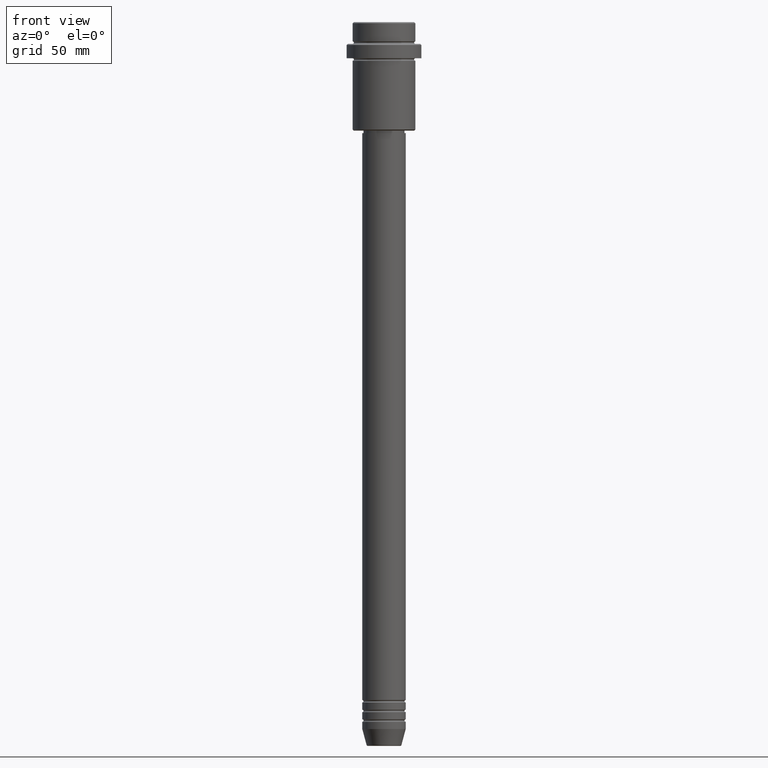
[diagram: clean part render]
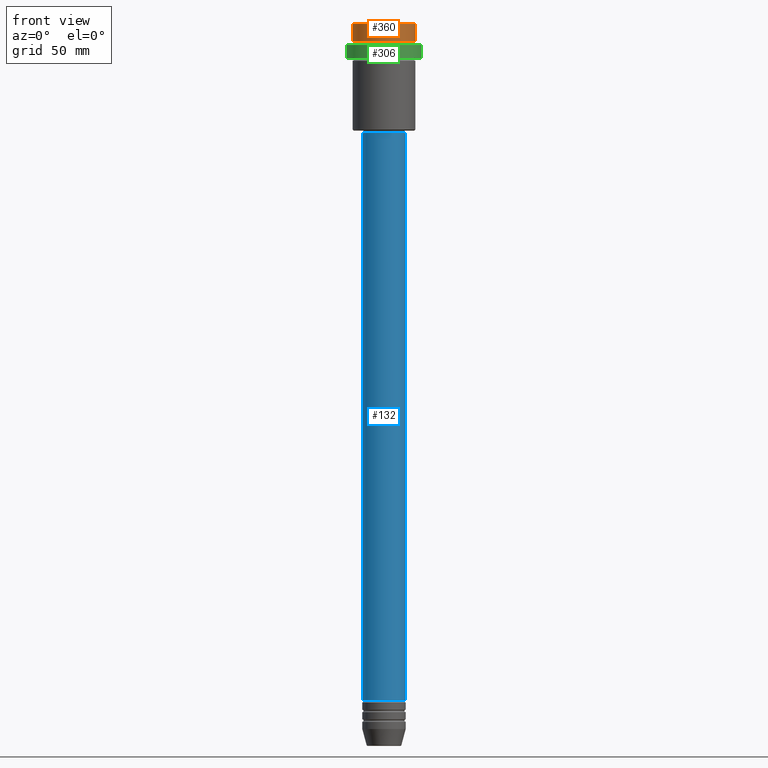
[diagram: same view with three faces highlighted in distinct colors, each labeled with its STEP entity id]
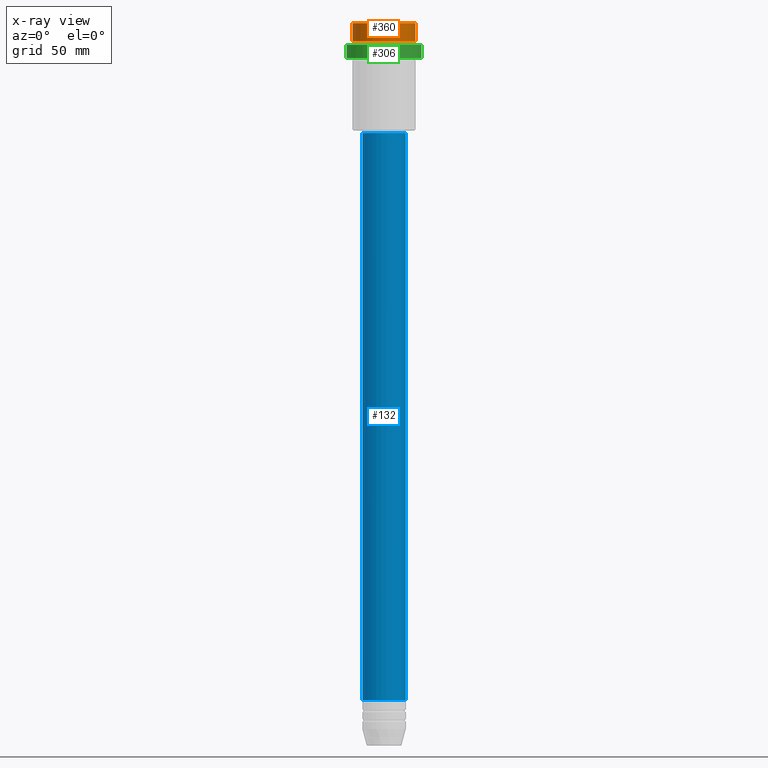
[diagram: x-ray of the same camera — body ghosted, the three highlighted faces saturated]
A machine part, front view with three faces highlighted in distinct colors.
The next image is the same camera in x-ray (body ghosted, the three faces saturated) — at least one of them is partly hidden behind the body in this view.
Their STEP definitions:

[orange] entity #360 — the highlighted cylindrical surface (edge-blend (fillet) strip) has radius 13 mm, axis along (-0, -0, 1).
#92 = EDGE_CURVE ( 'NONE', #792, #603, #1309, .T. ) ;
#104 = FACE_OUTER_BOUND ( 'NONE', #1129, .T. ) ;
#152 = CARTESIAN_POINT ( 'NONE',  ( -12.99999999999999822, 1.592040838891558898E-15, -7.999999999999998224 ) ) ;
#195 = CARTESIAN_POINT ( 'NONE',  ( 0.000000000000000000, 0.000000000000000000, -0.5000000000000315303 ) ) ;
#246 = CARTESIAN_POINT ( 'NONE',  ( 0.000000000000000000, 0.000000000000000000, 0.000000000000000000 ) ) ;
#262 = ORIENTED_EDGE ( 'NONE', *, *, #92, .T. ) ;
#268 = ORIENTED_EDGE ( 'NONE', *, *, #1210, .T. ) ;
#283 = CARTESIAN_POINT ( 'NONE',  ( 12.99999999999999822, 0.000000000000000000, -0.5000000000000315303 ) ) ;
#339 = DIRECTION ( 'NONE',  ( -0.000000000000000000, -0.000000000000000000, 1.000000000000000000 ) ) ;
#347 = DIRECTION ( 'NONE',  ( -0.000000000000000000, -0.000000000000000000, 1.000000000000000000 ) ) ;
#360 = ADVANCED_FACE ( 'NONE', ( #104 ), #766, .T. ) ;
#492 = CIRCLE ( 'NONE', #1177, 12.99999999999999822 ) ;
#495 = VERTEX_POINT ( 'NONE', #152 ) ;
#531 = VECTOR ( 'NONE', #1104, 1000.000000000000000 ) ;
#566 = LINE ( 'NONE', #1095, #745 ) ;
#586 = CARTESIAN_POINT ( 'NONE',  ( -12.99999999999999822, 1.592040838891558898E-15, -0.5000000000000315303 ) ) ;
#603 = VERTEX_POINT ( 'NONE', #283 ) ;
#666 = AXIS2_PLACEMENT_3D ( 'NONE', #195, #1082, #1279 ) ;
#704 = DIRECTION ( 'NONE',  ( 1.000000000000000000, 0.000000000000000000, 0.000000000000000000 ) ) ;
#722 = EDGE_CURVE ( 'NONE', #603, #1041, #1148, .T. ) ;
#745 = VECTOR ( 'NONE', #347, 1000.000000000000000 ) ;
#752 = CARTESIAN_POINT ( 'NONE',  ( 12.99999999999999822, 0.000000000000000000, -7.999999999999998224 ) ) ;
#766 = CYLINDRICAL_SURFACE ( 'NONE', #945, 12.99999999999999822 ) ;
#768 = DIRECTION ( 'NONE',  ( 1.000000000000000000, 0.000000000000000000, 0.000000000000000000 ) ) ;
#792 = VERTEX_POINT ( 'NONE', #752 ) ;
#833 = DIRECTION ( 'NONE',  ( -0.000000000000000000, -0.000000000000000000, 1.000000000000000000 ) ) ;
#945 = AXIS2_PLACEMENT_3D ( 'NONE', #246, #339, #768 ) ;
#948 = ORIENTED_EDGE ( 'NONE', *, *, #722, .T. ) ;
#990 = CARTESIAN_POINT ( 'NONE',  ( 12.99999999999999822, 0.000000000000000000, 0.000000000000000000 ) ) ;
#1041 = VERTEX_POINT ( 'NONE', #586 ) ;
#1049 = CARTESIAN_POINT ( 'NONE',  ( 0.000000000000000000, 0.000000000000000000, -7.999999999999998224 ) ) ;
#1082 = DIRECTION ( 'NONE',  ( 0.000000000000000000, 0.000000000000000000, -1.000000000000000000 ) ) ;
#1095 = CARTESIAN_POINT ( 'NONE',  ( -12.99999999999999822, 1.592040838891558898E-15, 0.000000000000000000 ) ) ;
#1104 = DIRECTION ( 'NONE',  ( -0.000000000000000000, -0.000000000000000000, 1.000000000000000000 ) ) ;
#1129 = EDGE_LOOP ( 'NONE', ( #1352, #268, #262, #948 ) ) ;
#1148 = CIRCLE ( 'NONE', #666, 12.99999999999999822 ) ;
#1177 = AXIS2_PLACEMENT_3D ( 'NONE', #1049, #833, #704 ) ;
#1210 = EDGE_CURVE ( 'NONE', #495, #792, #492, .T. ) ;
#1279 = DIRECTION ( 'NONE',  ( 1.000000000000000000, 0.000000000000000000, 0.000000000000000000 ) ) ;
#1309 = LINE ( 'NONE', #990, #531 ) ;
#1347 = EDGE_CURVE ( 'NONE', #495, #1041, #566, .T. ) ;
#1352 = ORIENTED_EDGE ( 'NONE', *, *, #1347, .F. ) ;

[blue] entity #132 — the highlighted cylindrical surface (edge-blend (fillet) strip) has radius 9 mm, axis along (-0, -0, 1).
#31 = DIRECTION ( 'NONE',  ( 1.000000000000000000, 0.000000000000000000, 0.000000000000000000 ) ) ;
#84 = DIRECTION ( 'NONE',  ( 1.000000000000000000, 0.000000000000000000, 0.000000000000000000 ) ) ;
#93 = DIRECTION ( 'NONE',  ( -0.000000000000000000, -0.000000000000000000, 1.000000000000000000 ) ) ;
#132 = ADVANCED_FACE ( 'NONE', ( #631 ), #1065, .T. ) ;
#144 = EDGE_LOOP ( 'NONE', ( #248, #803, #244, #1278 ) ) ;
#190 = DIRECTION ( 'NONE',  ( -0.000000000000000000, -0.000000000000000000, 1.000000000000000000 ) ) ;
#191 = EDGE_CURVE ( 'NONE', #1390, #1292, #1373, .T. ) ;
#244 = ORIENTED_EDGE ( 'NONE', *, *, #786, .T. ) ;
#248 = ORIENTED_EDGE ( 'NONE', *, *, #1066, .F. ) ;
#253 = VERTEX_POINT ( 'NONE', #750 ) ;
#258 = CARTESIAN_POINT ( 'NONE',  ( -9.000000000000001776, 1.102182119232617911E-15, 0.000000000000000000 ) ) ;
#260 = DIRECTION ( 'NONE',  ( -0.000000000000000000, -0.000000000000000000, 1.000000000000000000 ) ) ;
#314 = VERTEX_POINT ( 'NONE', #424 ) ;
#364 = LINE ( 'NONE', #258, #489 ) ;
#379 = EDGE_CURVE ( 'NONE', #253, #314, #550, .T. ) ;
#424 = CARTESIAN_POINT ( 'NONE',  ( 9.000000000000001776, 0.000000000000000000, -46.00000000000009948 ) ) ;
#466 = VECTOR ( 'NONE', #93, 1000.000000000000000 ) ;
#487 = AXIS2_PLACEMENT_3D ( 'NONE', #1136, #190, #84 ) ;
#489 = VECTOR ( 'NONE', #808, 1000.000000000000000 ) ;
#525 = LINE ( 'NONE', #1067, #466 ) ;
#550 = CIRCLE ( 'NONE', #1006, 9.000000000000001776 ) ;
#576 = CARTESIAN_POINT ( 'NONE',  ( 9.000000000000000000, 0.000000000000000000, -280.9999999999999432 ) ) ;
#631 = FACE_OUTER_BOUND ( 'NONE', #144, .T. ) ;
#679 = DIRECTION ( 'NONE',  ( -0.000000000000000000, -0.000000000000000000, 1.000000000000000000 ) ) ;
#682 = DIRECTION ( 'NONE',  ( 1.000000000000000000, 0.000000000000000000, 0.000000000000000000 ) ) ;
#685 = AXIS2_PLACEMENT_3D ( 'NONE', #1397, #260, #682 ) ;
#750 = CARTESIAN_POINT ( 'NONE',  ( -9.000000000000001776, 1.102182119232617911E-15, -46.00000000000009948 ) ) ;
#784 = CARTESIAN_POINT ( 'NONE',  ( 0.000000000000000000, 0.000000000000000000, -46.00000000000009948 ) ) ;
#786 = EDGE_CURVE ( 'NONE', #1292, #314, #525, .T. ) ;
#803 = ORIENTED_EDGE ( 'NONE', *, *, #191, .T. ) ;
#808 = DIRECTION ( 'NONE',  ( -0.000000000000000000, -0.000000000000000000, 1.000000000000000000 ) ) ;
#1006 = AXIS2_PLACEMENT_3D ( 'NONE', #784, #679, #31 ) ;
#1065 = CYLINDRICAL_SURFACE ( 'NONE', #685, 9.000000000000001776 ) ;
#1066 = EDGE_CURVE ( 'NONE', #1390, #253, #364, .T. ) ;
#1067 = CARTESIAN_POINT ( 'NONE',  ( 9.000000000000001776, 0.000000000000000000, 0.000000000000000000 ) ) ;
#1112 = CARTESIAN_POINT ( 'NONE',  ( -9.000000000000000000, 1.102182119232617714E-15, -280.9999999999999432 ) ) ;
#1136 = CARTESIAN_POINT ( 'NONE',  ( 0.000000000000000000, 0.000000000000000000, -280.9999999999999432 ) ) ;
#1278 = ORIENTED_EDGE ( 'NONE', *, *, #379, .F. ) ;
#1292 = VERTEX_POINT ( 'NONE', #576 ) ;
#1373 = CIRCLE ( 'NONE', #487, 9.000000000000000000 ) ;
#1390 = VERTEX_POINT ( 'NONE', #1112 ) ;
#1397 = CARTESIAN_POINT ( 'NONE',  ( 0.000000000000000000, 0.000000000000000000, 0.000000000000000000 ) ) ;

[green] entity #306 — the highlighted cylindrical surface (partial cylindrical patch) has radius 15.5 mm, axis along (-0, -0, 1).
#14 = CARTESIAN_POINT ( 'NONE',  ( -15.50000000000000000, 1.898202538678397557E-15, -15.00000000000000000 ) ) ;
#38 = EDGE_CURVE ( 'NONE', #563, #250, #621, .T. ) ;
#41 = EDGE_LOOP ( 'NONE', ( #1192, #911, #1137, #1280 ) ) ;
#53 = VECTOR ( 'NONE', #102, 1000.000000000000000 ) ;
#85 = DIRECTION ( 'NONE',  ( 1.000000000000000000, 0.000000000000000000, 0.000000000000000000 ) ) ;
#91 = CARTESIAN_POINT ( 'NONE',  ( 0.000000000000000000, 0.000000000000000000, 0.000000000000000000 ) ) ;
#102 = DIRECTION ( 'NONE',  ( -0.000000000000000000, -0.000000000000000000, 1.000000000000000000 ) ) ;
#163 = AXIS2_PLACEMENT_3D ( 'NONE', #205, #321, #735 ) ;
#205 = CARTESIAN_POINT ( 'NONE',  ( 0.000000000000000000, 0.000000000000000000, -15.00000000000000000 ) ) ;
#250 = VERTEX_POINT ( 'NONE', #1202 ) ;
#306 = ADVANCED_FACE ( 'NONE', ( #1188 ), #867, .T. ) ;
#321 = DIRECTION ( 'NONE',  ( -0.000000000000000000, -0.000000000000000000, 1.000000000000000000 ) ) ;
#336 = EDGE_CURVE ( 'NONE', #898, #1318, #1214, .T. ) ;
#426 = VECTOR ( 'NONE', #997, 1000.000000000000000 ) ;
#477 = LINE ( 'NONE', #785, #426 ) ;
#548 = AXIS2_PLACEMENT_3D ( 'NONE', #1400, #1374, #85 ) ;
#563 = VERTEX_POINT ( 'NONE', #604 ) ;
#604 = CARTESIAN_POINT ( 'NONE',  ( 15.50000000000000000, 0.000000000000000000, -9.500000000000039080 ) ) ;
#621 = CIRCLE ( 'NONE', #548, 15.50000000000000000 ) ;
#655 = DIRECTION ( 'NONE',  ( -0.000000000000000000, -0.000000000000000000, 1.000000000000000000 ) ) ;
#735 = DIRECTION ( 'NONE',  ( 1.000000000000000000, 0.000000000000000000, 0.000000000000000000 ) ) ;
#740 = EDGE_CURVE ( 'NONE', #1318, #563, #1394, .T. ) ;
#770 = CARTESIAN_POINT ( 'NONE',  ( 15.50000000000000000, 0.000000000000000000, -15.00000000000000000 ) ) ;
#785 = CARTESIAN_POINT ( 'NONE',  ( -15.50000000000000000, 1.898202538678397557E-15, 0.000000000000000000 ) ) ;
#867 = CYLINDRICAL_SURFACE ( 'NONE', #1235, 15.50000000000000000 ) ;
#898 = VERTEX_POINT ( 'NONE', #14 ) ;
#911 = ORIENTED_EDGE ( 'NONE', *, *, #336, .T. ) ;
#997 = DIRECTION ( 'NONE',  ( -0.000000000000000000, -0.000000000000000000, 1.000000000000000000 ) ) ;
#1089 = DIRECTION ( 'NONE',  ( 1.000000000000000000, 0.000000000000000000, 0.000000000000000000 ) ) ;
#1137 = ORIENTED_EDGE ( 'NONE', *, *, #740, .T. ) ;
#1188 = FACE_OUTER_BOUND ( 'NONE', #41, .T. ) ;
#1192 = ORIENTED_EDGE ( 'NONE', *, *, #1346, .F. ) ;
#1202 = CARTESIAN_POINT ( 'NONE',  ( -15.50000000000000000, 1.898202538678397557E-15, -9.500000000000039080 ) ) ;
#1214 = CIRCLE ( 'NONE', #163, 15.50000000000000000 ) ;
#1235 = AXIS2_PLACEMENT_3D ( 'NONE', #91, #655, #1089 ) ;
#1280 = ORIENTED_EDGE ( 'NONE', *, *, #38, .T. ) ;
#1318 = VERTEX_POINT ( 'NONE', #770 ) ;
#1346 = EDGE_CURVE ( 'NONE', #898, #250, #477, .T. ) ;
#1374 = DIRECTION ( 'NONE',  ( 0.000000000000000000, 0.000000000000000000, -1.000000000000000000 ) ) ;
#1394 = LINE ( 'NONE', #1412, #53 ) ;
#1400 = CARTESIAN_POINT ( 'NONE',  ( 0.000000000000000000, 0.000000000000000000, -9.500000000000039080 ) ) ;
#1412 = CARTESIAN_POINT ( 'NONE',  ( 15.50000000000000000, 0.000000000000000000, 0.000000000000000000 ) ) ;